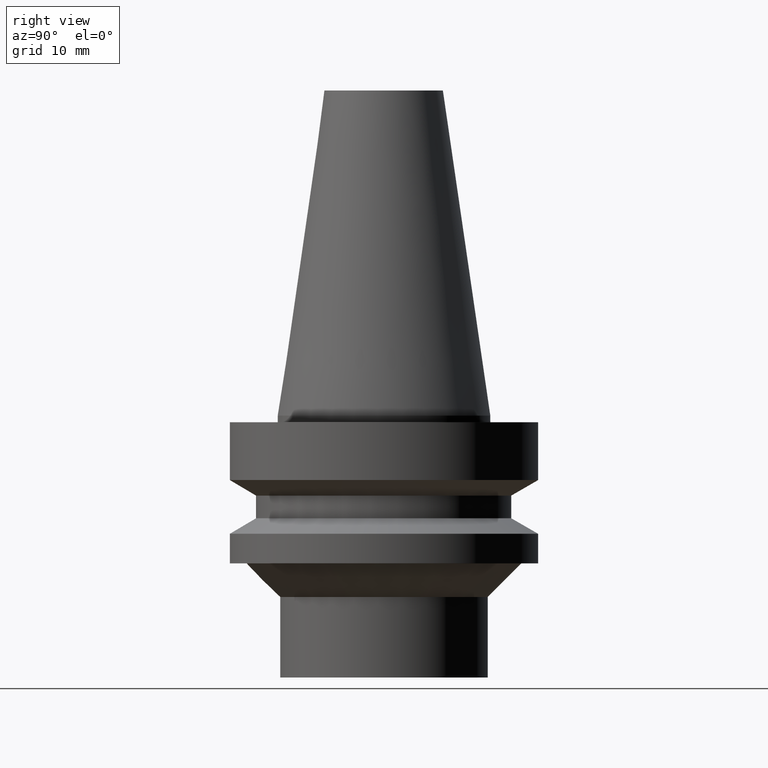
[diagram: clean part render]
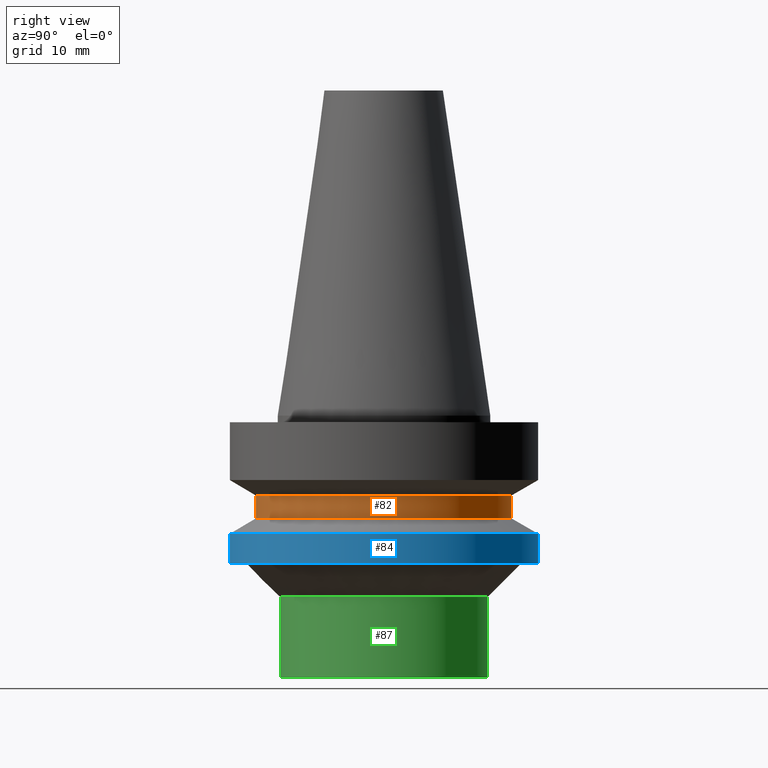
[diagram: same view with three faces highlighted in distinct colors, each labeled with its STEP entity id]
A machine part, right view with three faces highlighted in distinct colors.
Their STEP definitions:

[orange] entity #82 — the highlighted cylindrical surface (bore or boss wall) has radius 19 mm, axis along (-0, -0, 1).
#82=ADVANCED_FACE('',(#108,#109),#110,.T.);
#108=FACE_BOUND('',#145,.T.);
#109=FACE_BOUND('',#146,.T.);
#110=CYLINDRICAL_SURFACE('',#147,19.0);
#145=EDGE_LOOP('',(#196));
#146=EDGE_LOOP('',(#197));
#147=AXIS2_PLACEMENT_3D('',#198,#199,#200);
#196=ORIENTED_EDGE('',*,*,#233,.F.);
#197=ORIENTED_EDGE('',*,*,#232,.T.);
#198=CARTESIAN_POINT('',(8.32759823420199E-016,1.6655196468404E-015,-13.6));
#199=DIRECTION('',(-6.12323399573677E-017,-1.22464679914735E-016,1.0));
#200=DIRECTION('',(-1.23259516440783E-032,1.0,1.22464679914735E-016));
#232=EDGE_CURVE('',#250,#250,#251,.T.);
#233=EDGE_CURVE('',#252,#252,#253,.T.);
#250=VERTEX_POINT('',#274);
#251=CIRCLE('',#275,19.0);
#252=VERTEX_POINT('',#276);
#253=CIRCLE('',#277,19.0);
#274=CARTESIAN_POINT('',(7.29240495420715E-016,19.0,-11.9094010767585));
#275=AXIS2_PLACEMENT_3D('',#304,#305,#306);
#276=CARTESIAN_POINT('',(9.36279151419683E-016,19.0,-15.2905989232415));
#277=AXIS2_PLACEMENT_3D('',#307,#308,#309);
#304=CARTESIAN_POINT('',(7.29240495420715E-016,1.45848099084143E-015,-11.9094010767585));
#305=DIRECTION('',(6.12323399573677E-017,1.22464679914735E-016,-1.0));
#306=DIRECTION('',(-1.23259516440783E-032,1.0,1.22464679914735E-016));
#307=CARTESIAN_POINT('',(9.36279151419683E-016,1.87255830283937E-015,-15.2905989232415));
#308=DIRECTION('',(6.12323399573677E-017,1.22464679914735E-016,-1.0));
#309=DIRECTION('',(-1.23259516440783E-032,1.0,1.22464679914735E-016));

[blue] entity #84 — the highlighted cylindrical surface (bore or boss wall) has radius 23 mm, axis along (-0, -0, 1).
#84=ADVANCED_FACE('',(#114,#115),#116,.T.);
#114=FACE_BOUND('',#151,.T.);
#115=FACE_BOUND('',#152,.T.);
#116=CYLINDRICAL_SURFACE('',#153,23.0);
#151=EDGE_LOOP('',(#206));
#152=EDGE_LOOP('',(#207));
#153=AXIS2_PLACEMENT_3D('',#208,#209,#210);
#206=ORIENTED_EDGE('',*,*,#235,.F.);
#207=ORIENTED_EDGE('',*,*,#234,.T.);
#208=CARTESIAN_POINT('',(1.21240033115588E-015,2.42480066231176E-015,-19.8));
#209=DIRECTION('',(-6.12323399573677E-017,-1.22464679914735E-016,1.0));
#210=DIRECTION('',(-1.23259516440783E-032,1.0,1.22464679914735E-016));
#234=EDGE_CURVE('',#254,#254,#255,.T.);
#235=EDGE_CURVE('',#256,#256,#257,.T.);
#254=VERTEX_POINT('',#278);
#255=CIRCLE('',#279,23.0);
#256=VERTEX_POINT('',#280);
#257=CIRCLE('',#281,23.0);
#278=CARTESIAN_POINT('',(1.07768918324967E-015,23.0,-17.6));
#279=AXIS2_PLACEMENT_3D('',#310,#311,#312);
#280=CARTESIAN_POINT('',(1.34711147906209E-015,23.0,-22.0));
#281=AXIS2_PLACEMENT_3D('',#313,#314,#315);
#310=CARTESIAN_POINT('',(1.07768918324967E-015,2.15537836649934E-015,-17.6));
#311=DIRECTION('',(6.12323399573677E-017,1.22464679914735E-016,-1.0));
#312=DIRECTION('',(-1.23259516440783E-032,1.0,1.22464679914735E-016));
#313=CARTESIAN_POINT('',(1.34711147906209E-015,2.69422295812418E-015,-22.0));
#314=DIRECTION('',(6.12323399573677E-017,1.22464679914735E-016,-1.0));
#315=DIRECTION('',(-1.23259516440783E-032,1.0,1.22464679914735E-016));

[green] entity #87 — the highlighted cylindrical surface (bore or boss wall) has radius 15.5 mm, axis along (-0, -0, 1).
#87=ADVANCED_FACE('',(#123,#124),#125,.T.);
#123=FACE_BOUND('',#160,.T.);
#124=FACE_BOUND('',#161,.T.);
#125=CYLINDRICAL_SURFACE('',#162,15.5);
#160=EDGE_LOOP('',(#221));
#161=EDGE_LOOP('',(#222));
#162=AXIS2_PLACEMENT_3D('',#223,#224,#225);
#221=ORIENTED_EDGE('',*,*,#226,.F.);
#222=ORIENTED_EDGE('',*,*,#237,.T.);
#223=CARTESIAN_POINT('',(2.02066721859313E-015,4.04133443718627E-015,-33.0));
#224=DIRECTION('',(-6.12323399573677E-017,-1.22464679914735E-016,1.0));
#225=DIRECTION('',(-1.23259516440783E-032,1.0,1.22464679914735E-016));
#226=EDGE_CURVE('',#238,#238,#239,.T.);
#237=EDGE_CURVE('',#260,#260,#261,.T.);
#238=VERTEX_POINT('',#262);
#239=CIRCLE('',#263,15.5);
#260=VERTEX_POINT('',#284);
#261=CIRCLE('',#285,15.5);
#262=CARTESIAN_POINT('',(2.38806125833734E-015,15.5,-39.0));
#263=AXIS2_PLACEMENT_3D('',#286,#287,#288);
#284=CARTESIAN_POINT('',(1.65327317884893E-015,15.5,-27.0));
#285=AXIS2_PLACEMENT_3D('',#319,#320,#321);
#286=CARTESIAN_POINT('',(2.38806125833734E-015,4.77612251667468E-015,-39.0));
#287=DIRECTION('',(6.12323399573677E-017,1.22464679914735E-016,-1.0));
#288=DIRECTION('',(-1.23259516440783E-032,1.0,1.22464679914735E-016));
#319=CARTESIAN_POINT('',(1.65327317884893E-015,3.30654635769786E-015,-27.0));
#320=DIRECTION('',(6.12323399573677E-017,1.22464679914735E-016,-1.0));
#321=DIRECTION('',(-1.23259516440783E-032,1.0,1.22464679914735E-016));